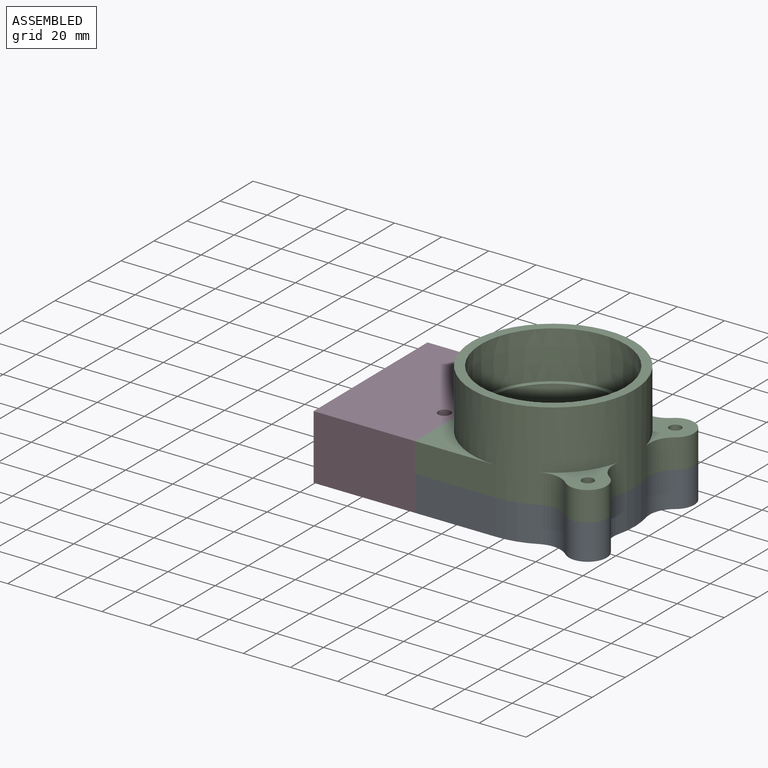
[diagram: assembled view]
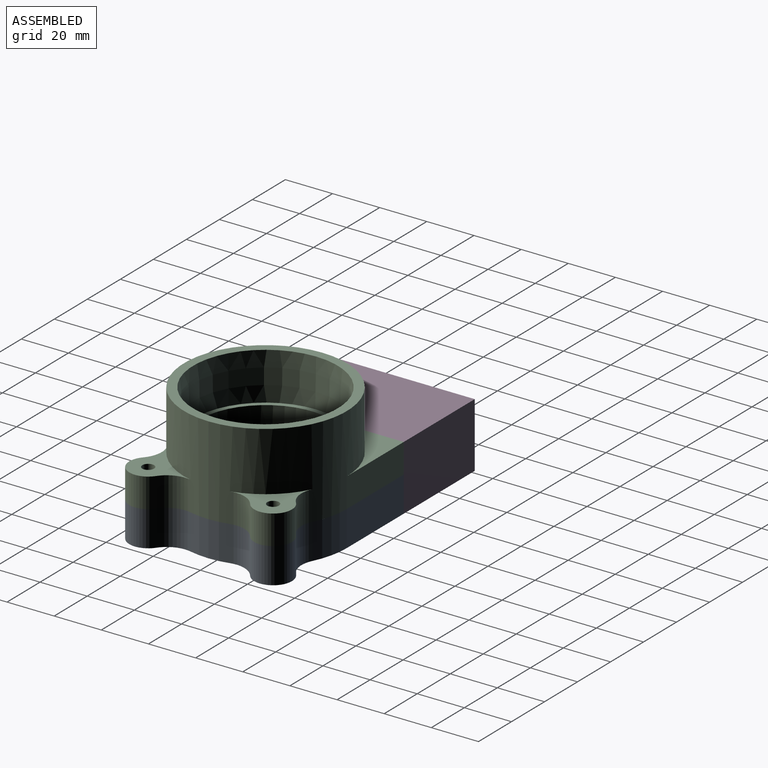
[diagram: assembled view, second angle]
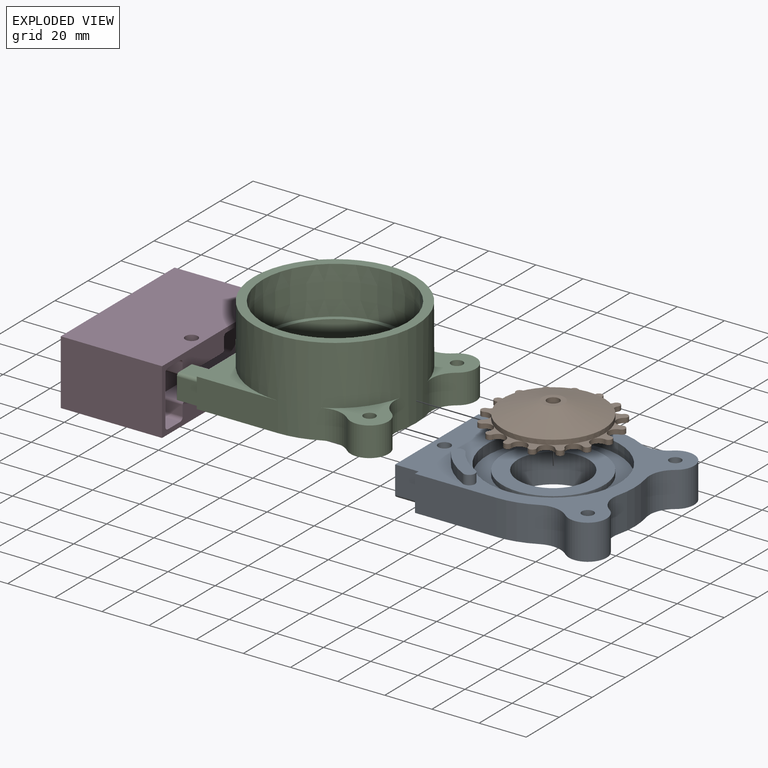
[diagram: exploded view]
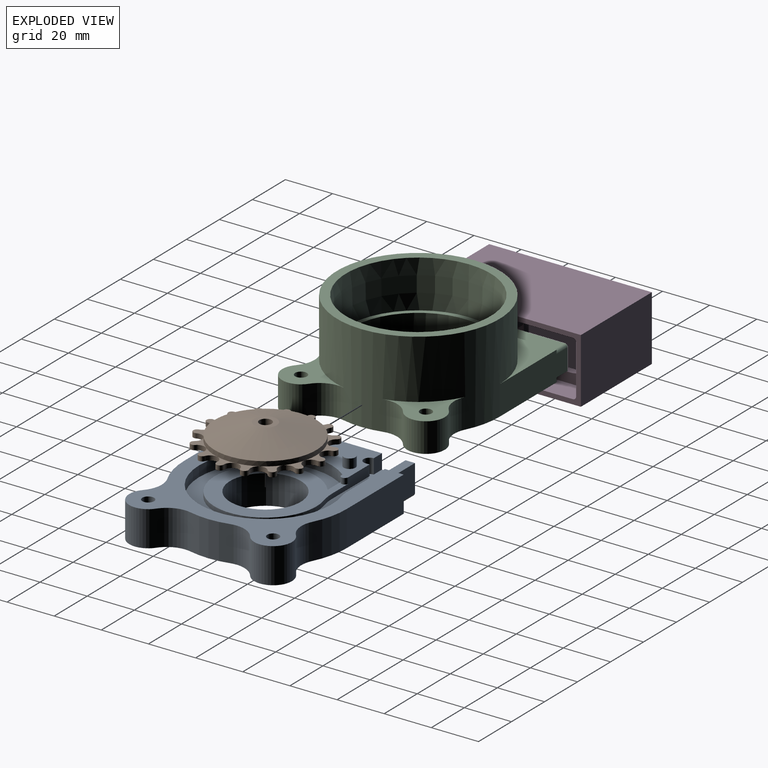
[diagram: exploded view, second angle]
ASSEMBLY  parts=4 mates=8
PART A: 68 faces, bbox 85.7x69x19 mm
  f0: plane 64.5x12.75mm, normal (-1,0,0), area 583.9mm2, adj f11,f25,f26,f27,f28,f29,f30,f31
  f1: plane 22.83x4.5mm, normal (0,-1,0), area 102.8mm2, adj f2,f11,f12,f56
  f2: cylinder r=15.1mm len=4.5mm, axis (0,0,1), area 18.6mm2, adj f1,f3,f11,f12
  f3: cylinder r=28.1mm len=56.21mm, axis (0,0,1), area 712.7mm2, adj f2,f4,f11,f12
  f4: plane 9.05x4.5mm, normal (0,-1,0), area 19.9mm2, adj f3,f5,f9,f10,f11,f12
  f5: cylinder r=21.6mm len=43.21mm, axis (0,0,1), area 254.6mm2, adj f4,f6,f9,f12
  f6: cylinder r=21.6mm len=5.83mm, axis (0,0,1), area 11.8mm2, adj f5,f7,f9,f12
  f7: plane 22.83x4.5mm, normal (0,1,0), area 77.8mm2, adj f6,f9,f10,f11,f12,f56
  f8: plane 69x15mm, normal (-1,0,0), area 388.6mm2, adj f11,f13,f14,f24,f25,f26,f27,f28
  f9: plane 43.26x43.21mm, normal (0,0,1), area 788.4mm2, adj f4,f5,f6,f7,f10,f38
  f10: cylinder r=1.5mm len=3mm, axis (0,0,-1), area 11.8mm2, adj f4,f7,f9,f11
  f11: plane 85.73x69mm, normal (0,0,1), area 2501.1mm2, adj f0,f1,f2,f3,f4,f7,f8,f10
  f12: plane 62.61x56.21mm, normal (0,0,1), area 1108.6mm2, adj f1,f2,f3,f4,f5,f6,f7,f56
  f13: plane 75.73x69mm, normal (0,0,-1), area 3938.9mm2, adj f8,f14,f15,f16,f17,f18,f19,f20
  f14: plane 34.5x15mm, normal (0,1,0), area 517.5mm2, adj f8,f11,f13,f15
  f15: cylinder r=34.5mm len=15.56mm, axis (0,0,-1), area 242.2mm2, adj f11,f13,f14,f16
  f16: cylinder r=10.97mm len=15mm, axis (0,0,-1), area 197.9mm2, adj f11,f13,f15,f17
  f17: cylinder r=8mm len=15mm, axis (0,0,-1), area 391.7mm2, adj f11,f13,f16,f18
  f18: cylinder r=10.97mm len=15mm, axis (0,0,-1), area 197.9mm2, adj f11,f13,f17,f19
  f19: cylinder r=34.5mm len=16.65mm, axis (0,0,-1), area 252.2mm2, adj f11,f13,f18,f20
  f20: cylinder r=10.97mm len=15mm, axis (0,0,-1), area 197.9mm2, adj f11,f13,f19,f21
  f21: cylinder r=8mm len=15mm, axis (0,0,-1), area 391.7mm2, adj f11,f13,f20,f22
  f22: cylinder r=10.97mm len=15mm, axis (0,0,-1), area 197.9mm2, adj f11,f13,f21,f23
  f23: cylinder r=34.5mm len=15.56mm, axis (0,0,-1), area 242.2mm2, adj f11,f13,f22,f24
  f24: plane 34.5x15mm, normal (0,-1,0), area 517.5mm2, adj f8,f11,f13,f23
  f25: plane 11.5x10mm, normal (0,1,0), area 115mm2, adj f0,f8,f11,f26
  f26: cylinder r=1.25mm len=10mm, axis (1,0,0), area 19.6mm2, adj f0,f8,f25,f27
  f27: plane 26.5x10mm, normal (0,0,-1), area 265mm2, adj f0,f8,f26,f28
  f28: cylinder r=1.25mm len=10mm, axis (1,0,0), area 19.6mm2, adj f0,f8,f27,f29
  f29: plane 10x4.38mm, normal (0,-1,0), area 43.7mm2, adj f0,f8,f28,f30
  f30: cylinder r=1.25mm len=10mm, axis (1,0,0), area 19.6mm2, adj f0,f8,f29,f31
  f31: plane 23x10mm, normal (0,0,-1), area 208.4mm2, adj f0,f8,f30,f32,f55
  f32: cylinder r=1.25mm len=10mm, axis (1,0,0), area 19.6mm2, adj f0,f8,f31,f33
  f33: plane 10x4.38mm, normal (0,1,0), area 43.7mm2, adj f0,f8,f32,f34
  f34: cylinder r=1.25mm len=10mm, axis (1,0,0), area 19.6mm2, adj f0,f8,f33,f35
  f35: plane 10x7.5mm, normal (0,0,-1), area 75mm2, adj f0,f8,f34,f36
  f36: cylinder r=1.25mm len=10mm, axis (1,0,0), area 19.6mm2, adj f0,f8,f35,f37
  f37: plane 11.5x10mm, normal (0,-1,0), area 115mm2, adj f0,f8,f11,f36
  f38: cylinder r=15mm len=30mm, axis (0,0,1), area 1178.1mm2, adj f9,f13
  f39: plane 6x4.3mm, normal (0.37,0.93,0), area 27.7mm2, adj f13,f40,f44,f45
  f40: plane 6x4.57mm, normal (0.99,0.15,0), area 27.7mm2, adj f13,f39,f41,f45
  f41: plane 6x3.61mm, normal (0.62,-0.78,0), area 27.7mm2, adj f13,f40,f42,f45
  f42: plane 6x4.3mm, normal (-0.37,-0.93,0), area 27.7mm2, adj f13,f41,f43,f45
  f43: plane 6x4.57mm, normal (-0.99,-0.15,0), area 27.7mm2, adj f13,f42,f44,f45
  f44: plane 6x3.61mm, normal (-0.62,0.78,0), area 27.7mm2, adj f13,f39,f43,f45
  f45: plane 9.13x8.6mm, normal (0,0,-1), area 35.8mm2, adj f39,f40,f41,f42,f43,f44,f54
  f46: plane 6x3.61mm, normal (0.62,0.78,0), area 27.7mm2, adj f13,f47,f51,f52
  f47: plane 6x4.57mm, normal (0.99,-0.15,0), area 27.7mm2, adj f13,f46,f48,f52
  f48: plane 6x4.3mm, normal (0.37,-0.93,0), area 27.7mm2, adj f13,f47,f49,f52
  f49: plane 6x3.61mm, normal (-0.62,-0.78,0), area 27.7mm2, adj f13,f48,f50,f52
  f50: plane 6x4.57mm, normal (-0.99,0.15,0), area 27.7mm2, adj f13,f49,f51,f52
  f51: plane 6x4.3mm, normal (-0.37,0.93,0), area 27.7mm2, adj f13,f46,f50,f52
  f52: plane 9.13x8.6mm, normal (0,0,-1), area 35.8mm2, adj f46,f47,f48,f49,f50,f51,f53
  f53: cylinder r=2.5mm len=9mm, axis (0,0,1), area 141.4mm2, adj f11,f52
  f54: cylinder r=2.5mm len=9mm, axis (0,0,1), area 141.4mm2, adj f11,f45
  f55: cylinder r=2.62mm len=5.88mm, axis (0,0,1), area 96.9mm2, adj f11,f31
  f56: plane 10x6.25mm, normal (-1,0,0), area 33.3mm2, adj f1,f7,f11,f12,f57,f59,f60
  f57: plane 10x6.25mm, normal (0,-1,0), area 62.5mm2, adj f0,f11,f56,f60
  f58: plane 6.25x5mm, normal (0,1,0), area 31.2mm2, adj f0,f11,f59,f60
  f59: cylinder r=2.5mm len=6.25mm, axis (0,0,1), area 49.1mm2, adj f11,f56,f58,f60
  f60: plane 12.5x10mm, normal (0,0,1), area 109.8mm2, adj f0,f56,f57,f58,f59
  f61: cylinder r=35.6mm len=13.7mm, axis (0,0,-1), area 74.6mm2, adj f11,f62,f64,f65
  f62: cylinder r=2.5mm len=4.73mm, axis (0,0,-1), area 31.4mm2, adj f11,f61,f63,f65
  f63: cylinder r=30.6mm len=11.78mm, axis (0,0,-1), area 64.1mm2, adj f11,f62,f64,f65
  f64: cylinder r=2.5mm len=4.6mm, axis (0,0,-1), area 31.4mm2, adj f11,f61,f63,f65
  f65: plane 17.74x16.46mm, normal (0,0,1), area 106.3mm2, adj f61,f62,f63,f64
  f66: cylinder r=2.5mm len=5mm, axis (0,0,-1), area 62.8mm2, adj f11,f67
  f67: plane 5x5mm, normal (0,0,1), area 19.6mm2, adj f66
PART B: 68 faces, bbox 52x52x9 mm
  f0: plane 52.01x52.01mm, normal (0,0,-1), area 1554mm2, adj f16,f17,f18,f19,f20,f21,f22,f23
  f1: plane 8.27x6.04mm, normal (0,0,1), area 17.7mm2, adj f42,f43,f44,f49
  f2: plane 7.17x7.01mm, normal (0,0,1), area 17.7mm2, adj f44,f45,f46,f49
  f3: plane 7.16x7.02mm, normal (0,0,1), area 17.7mm2, adj f16,f46,f47,f49
  f4: plane 8.27x6.04mm, normal (0,0,1), area 17.7mm2, adj f16,f17,f18,f49
  f5: plane 8.27x6.04mm, normal (0,0,1), area 17.7mm2, adj f18,f19,f20,f49
  f6: plane 7.17x7.01mm, normal (0,0,1), area 17.7mm2, adj f20,f21,f22,f49
  f7: plane 7.16x7.02mm, normal (0,0,1), area 17.7mm2, adj f22,f23,f24,f49
  f8: plane 8.27x6.04mm, normal (0,0,1), area 17.7mm2, adj f24,f25,f26,f49
  f9: plane 8.27x6.04mm, normal (0,0,1), area 17.7mm2, adj f26,f27,f28,f49
  f10: plane 7.17x7.01mm, normal (0,0,1), area 17.7mm2, adj f28,f29,f30,f49
  f11: plane 7.16x7.02mm, normal (0,0,1), area 17.7mm2, adj f30,f31,f32,f49
  f12: plane 8.27x6.04mm, normal (0,0,1), area 17.7mm2, adj f32,f33,f34,f49
  f13: plane 8.27x6.04mm, normal (0,0,1), area 17.7mm2, adj f34,f35,f36,f49
  f14: plane 7.17x7.01mm, normal (0,0,1), area 17.7mm2, adj f36,f37,f38,f49
  f15: plane 7.16x7.02mm, normal (0,0,1), area 17.7mm2, adj f38,f39,f40,f49
  f16: cylinder r=3.25mm len=6.17mm, axis (0,0,-1), area 19.4mm2, adj f0,f3,f4,f17,f47
  f17: cylinder r=1.62mm len=3.23mm, axis (0,0,-1), area 10.6mm2, adj f0,f4,f16,f18
  f18: cylinder r=3.25mm len=6.48mm, axis (0,0,-1), area 19.4mm2, adj f0,f4,f5,f17,f19
  f19: cylinder r=1.62mm len=3.24mm, axis (0,0,-1), area 10.6mm2, adj f0,f5,f18,f20
  f20: cylinder r=3.25mm len=6.12mm, axis (0,0,-1), area 19.4mm2, adj f0,f5,f6,f19,f21
  f21: cylinder r=1.62mm len=3.06mm, axis (0,0,-1), area 10.6mm2, adj f0,f6,f20,f22
  f22: cylinder r=3.25mm len=5.39mm, axis (0,0,-1), area 19.4mm2, adj f0,f6,f7,f21,f23
  f23: cylinder r=1.62mm len=3.01mm, axis (0,0,-1), area 10.6mm2, adj f0,f7,f22,f24
  f24: cylinder r=3.25mm len=6.17mm, axis (0,0,-1), area 19.4mm2, adj f0,f7,f8,f23,f25
  f25: cylinder r=1.62mm len=3.23mm, axis (0,0,-1), area 10.6mm2, adj f0,f8,f24,f26
  f26: cylinder r=3.25mm len=6.48mm, axis (0,0,-1), area 19.4mm2, adj f0,f8,f9,f25,f27
  f27: cylinder r=1.62mm len=3.24mm, axis (0,0,-1), area 10.6mm2, adj f0,f9,f26,f28
  f28: cylinder r=3.25mm len=6.12mm, axis (0,0,-1), area 19.4mm2, adj f0,f9,f10,f27,f29
  f29: cylinder r=1.62mm len=3.06mm, axis (0,0,-1), area 10.6mm2, adj f0,f10,f28,f30
  f30: cylinder r=3.25mm len=5.39mm, axis (0,0,-1), area 19.4mm2, adj f0,f10,f11,f29,f31
  f31: cylinder r=1.62mm len=3.01mm, axis (0,0,-1), area 10.6mm2, adj f0,f11,f30,f32
  f32: cylinder r=3.25mm len=6.17mm, axis (0,0,-1), area 19.4mm2, adj f0,f11,f12,f31,f33
  f33: cylinder r=1.62mm len=3.23mm, axis (0,0,-1), area 10.6mm2, adj f0,f12,f32,f34
  f34: cylinder r=3.25mm len=6.48mm, axis (0,0,-1), area 19.4mm2, adj f0,f12,f13,f33,f35
  f35: cylinder r=1.62mm len=3.24mm, axis (0,0,-1), area 10.6mm2, adj f0,f13,f34,f36
  f36: cylinder r=3.25mm len=6.12mm, axis (0,0,-1), area 19.4mm2, adj f0,f13,f14,f35,f37
  f37: cylinder r=1.62mm len=3.06mm, axis (0,0,-1), area 10.6mm2, adj f0,f14,f36,f38
  f38: cylinder r=3.25mm len=5.39mm, axis (0,0,-1), area 19.4mm2, adj f0,f14,f15,f37,f39
  f39: cylinder r=1.62mm len=3.01mm, axis (0,0,-1), area 10.6mm2, adj f0,f15,f38,f40
  f40: cylinder r=3.25mm len=6.17mm, axis (0,0,-1), area 19.4mm2, adj f0,f15,f39,f41,f48
  f41: cylinder r=1.62mm len=3.23mm, axis (0,0,-1), area 10.6mm2, adj f0,f40,f42,f48
  f42: cylinder r=3.25mm len=6.48mm, axis (0,0,-1), area 19.4mm2, adj f0,f1,f41,f43,f48
  f43: cylinder r=1.62mm len=3.24mm, axis (0,0,-1), area 10.6mm2, adj f0,f1,f42,f44
  f44: cylinder r=3.25mm len=6.12mm, axis (0,0,-1), area 19.4mm2, adj f0,f1,f2,f43,f45
  f45: cylinder r=1.62mm len=3.06mm, axis (0,0,-1), area 10.6mm2, adj f0,f2,f44,f46
  f46: cylinder r=3.25mm len=5.39mm, axis (0,0,-1), area 19.4mm2, adj f0,f2,f3,f45,f47
  f47: cylinder r=1.62mm len=3.01mm, axis (0,0,-1), area 10.6mm2, adj f0,f3,f16,f46
  f48: plane 8.27x6.04mm, normal (0,0,1), area 17.7mm2, adj f40,f41,f42,f49
  f49: cylinder r=21.6mm len=43.21mm, axis (0,0,-1), area 271.5mm2, adj f1,f2,f3,f4,f5,f6,f7,f8
  f50: plane 9.5x9.5mm, normal (0,0,1), area 49.2mm2, adj f51,f52
  f51: cone r=4.75mm half-angle=73.5deg, axis (0,0,-1), area 1455.6mm2, adj f49,f50
  f52: cylinder r=2.62mm len=9mm, axis (0,0,1), area 148.4mm2, adj f0,f50
  f53: cylinder r=6.31mm len=4.84mm, axis (0,0,-1), area 22mm2, adj f0,f54,f56,f57
  f54: cylinder r=2.5mm len=4.42mm, axis (0,0,-1), area 31.4mm2, adj f0,f53,f55,f57
  f55: cylinder r=11.31mm len=8.67mm, axis (0,0,-1), area 39.5mm2, adj f0,f54,f56,f57
  f56: cylinder r=2.5mm len=5mm, axis (0,0,-1), area 31.4mm2, adj f0,f53,f55,f57
  f57: plane 11.75x8.15mm, normal (0,0,-1), area 58.1mm2, adj f53,f54,f55,f56
  f58: cylinder r=11.31mm len=9.53mm, axis (0,0,-1), area 39.5mm2, adj f0,f59,f61,f62
  f59: cylinder r=2.5mm len=4.67mm, axis (0,0,-1), area 31.4mm2, adj f0,f58,f60,f62
  f60: cylinder r=6.31mm len=5.32mm, axis (0,0,-1), area 22mm2, adj f0,f59,f61,f62
  f61: cylinder r=2.5mm len=4.85mm, axis (0,0,-1), area 31.4mm2, adj f0,f58,f60,f62
  f62: plane 12.42x6.18mm, normal (0,0,-1), area 58.1mm2, adj f58,f59,f60,f61
  f63: cylinder r=11.31mm len=7.83mm, axis (0,0,-1), area 39.5mm2, adj f0,f64,f66,f67
  f64: cylinder r=2.5mm len=4.67mm, axis (0,0,-1), area 31.4mm2, adj f0,f63,f65,f67
  f65: cylinder r=6.31mm len=4.37mm, axis (0,0,-1), area 22mm2, adj f0,f64,f66,f67
  f66: cylinder r=2.5mm len=4.96mm, axis (0,0,-1), area 31.4mm2, adj f0,f63,f65,f67
  f67: plane 11.1x9.27mm, normal (0,0,-1), area 58.1mm2, adj f63,f64,f65,f66
PART C: 58 faces, bbox 85.7x69x37.5 mm
  f0: plane 64.5x10.25mm, normal (-1,0,0), area 447.6mm2, adj f11,f22,f25,f29,f30,f31,f32,f33
  f1: cylinder r=28.1mm len=56.21mm, axis (0,0,-1), area 2969.6mm2, adj f6,f24,f25,f26,f27,f42,f43
  f2: plane 26.18x25.66mm, normal (0,0,1), area 233.6mm2, adj f13,f14,f15,f19,f41
  f3: plane 34.5x34.5mm, normal (0,0,1), area 255.4mm2, adj f12,f19,f21
  f4: plane 34.5x34.5mm, normal (0,0,1), area 255.4mm2, adj f19,f20,f21
  f5: plane 26.18x25.66mm, normal (0,0,1), area 233.6mm2, adj f16,f17,f18,f19,f40
  f6: plane 8.11x3.41mm, normal (0,-1,0), area 23.4mm2, adj f1,f7,f25,f42
  f7: cylinder r=0.4mm len=2.09mm, axis (0,0,-1), area 0.6mm2, adj f6,f8,f25,f42
  f8: cylinder r=22.1mm len=3.16mm, axis (0,0,-1), area 8.8mm2, adj f7,f9,f25,f26,f42
  f9: cylinder r=0.4mm len=2mm, axis (0,0,-1), area 2.1mm2, adj f8,f10,f25,f27
  f10: plane 23.44x2mm, normal (0,1,0), area 46.9mm2, adj f9,f25,f27,f49
  f11: plane 10x9mm, normal (0,-1,0), area 90mm2, adj f0,f21,f25,f29
  f12: plane 34.5x12.5mm, normal (0,-1,0), area 431.2mm2, adj f3,f19,f21,f25
  f13: cylinder r=10.97mm len=12.5mm, axis (0,0,-1), area 164.9mm2, adj f2,f14,f19,f25
  f14: cylinder r=8mm len=14.55mm, axis (0,0,-1), area 326.4mm2, adj f2,f13,f15,f25
  f15: cylinder r=10.97mm len=12.5mm, axis (0,0,-1), area 164.9mm2, adj f2,f14,f19,f25
  f16: cylinder r=10.97mm len=12.5mm, axis (0,0,-1), area 164.9mm2, adj f5,f17,f19,f25
  f17: cylinder r=8mm len=14.55mm, axis (0,0,-1), area 326.4mm2, adj f5,f16,f18,f25
  f18: cylinder r=10.97mm len=12.5mm, axis (0,0,-1), area 164.9mm2, adj f5,f17,f19,f25
  f19: cylinder r=34.5mm len=69mm, axis (0,0,-1), area 6033.1mm2, adj f2,f3,f4,f5,f12,f13,f15,f16
  f20: plane 34.5x12.5mm, normal (0,1,0), area 431.2mm2, adj f4,f19,f21,f25
  f21: plane 69x12.5mm, normal (-1,0,0), area 377.4mm2, adj f3,f4,f11,f12,f20,f22,f25,f29
  f22: plane 10x9mm, normal (0,1,0), area 90mm2, adj f0,f21,f25,f39
  f23: plane 22.83x2mm, normal (0,-1,0), area 45.7mm2, adj f24,f25,f27,f49
  f24: cylinder r=15.1mm len=4.08mm, axis (0,0,-1), area 8.3mm2, adj f1,f23,f25,f27
  f25: plane 85.73x69mm, normal (0,0,-1), area 2509.2mm2, adj f0,f1,f6,f7,f8,f9,f10,f11
  f26: cylinder r=28.1mm len=9.53mm, axis (0,0,-1), area 6.6mm2, adj f1,f8,f27,f42
  f27: plane 33.17x8.82mm, normal (0,0,-1), area 195.4mm2, adj f1,f9,f10,f23,f24,f26,f49
  f28: plane 69x69mm, normal (0,0,1), area 785.6mm2, adj f19,f44
  f29: cylinder r=1.25mm len=10mm, axis (1,0,0), area 19.6mm2, adj f0,f11,f21,f30
  f30: plane 10x7.5mm, normal (0,0,1), area 75mm2, adj f0,f21,f29,f31
  f31: cylinder r=1.25mm len=10mm, axis (1,0,0), area 19.6mm2, adj f0,f21,f30,f32
  f32: plane 10x4.38mm, normal (0,1,0), area 43.7mm2, adj f0,f21,f31,f33
  f33: cylinder r=1.25mm len=10mm, axis (1,0,0), area 19.6mm2, adj f0,f21,f32,f34
  f34: plane 23x10mm, normal (0,0,1), area 208.4mm2, adj f0,f21,f33,f35,f45
  f35: cylinder r=1.25mm len=10mm, axis (1,0,0), area 19.6mm2, adj f0,f21,f34,f36
  f36: plane 10x4.38mm, normal (0,-1,0), area 43.7mm2, adj f0,f21,f35,f37
  f37: cylinder r=1.25mm len=10mm, axis (1,0,0), area 19.6mm2, adj f0,f21,f36,f38
  f38: plane 26.5x10mm, normal (0,0,1), area 265mm2, adj f0,f21,f37,f39
  f39: cylinder r=1.25mm len=10mm, axis (1,0,0), area 19.6mm2, adj f0,f21,f22,f38
  f40: cylinder r=2.5mm len=12.5mm, axis (0,0,1), area 196.3mm2, adj f5,f25
  f41: cylinder r=2.5mm len=12.5mm, axis (0,0,1), area 196.3mm2, adj f2,f25
  f42: cone r=14.1mm half-angle=54.5deg, axis (0,0,-1), area 120.4mm2, adj f1,f6,f7,f8,f26
  f43: plane 60.33x60.33mm, normal (0,0,1), area 376.7mm2, adj f1,f44
  f44: cone r=30.16mm half-angle=1.4deg, axis (0,0,1), area 3822.9mm2, adj f28,f43
  f45: cylinder r=2.62mm len=5.25mm, axis (0,0,1), area 55.7mm2, adj f25,f34
  f46: plane 10x3.75mm, normal (0,-1,0), area 37.5mm2, adj f0,f25,f49,f50
  f47: plane 5x3.75mm, normal (0,1,0), area 18.7mm2, adj f0,f25,f48,f50
  f48: cylinder r=2.5mm len=5mm, axis (0,0,1), area 29.5mm2, adj f25,f47,f49,f50
  f49: plane 10x3.75mm, normal (-1,0,0), area 24.5mm2, adj f10,f23,f25,f27,f46,f48,f50
  f50: plane 12.5x10mm, normal (0,0,-1), area 109.8mm2, adj f0,f46,f47,f48,f49
  f51: plane 18.24x16.96mm, normal (0,0,-1), area 119.1mm2, adj f52,f53,f54,f55
  f52: cylinder r=2.75mm len=5.2mm, axis (0,0,1), area 36.7mm2, adj f25,f51,f53,f55
  f53: cylinder r=30.35mm len=11.68mm, axis (0,0,1), area 67.5mm2, adj f25,f51,f52,f54
  f54: cylinder r=2.75mm len=5.06mm, axis (0,0,1), area 36.7mm2, adj f25,f51,f53,f55
  f55: cylinder r=35.85mm len=13.8mm, axis (0,0,1), area 79.8mm2, adj f25,f51,f52,f54
  f56: cylinder r=2.75mm len=5.5mm, axis (0,0,1), area 73.4mm2, adj f25,f57
  f57: plane 5.5x5.5mm, normal (0,0,-1), area 23.8mm2, adj f56
PART D: 57 faces, bbox 43x69x27.5 mm
  f0: cylinder r=2.62mm len=5.25mm, axis (0,0,1), area 47.4mm2, adj f31,f37
  f1: plane 43x27.5mm, normal (0,-1,0), area 1182.5mm2, adj f2,f5,f6,f56
  f2: plane 69x43mm, normal (0,0,1), area 2945.4mm2, adj f1,f3,f5,f36,f56
  f3: plane 43x27.5mm, normal (0,1,0), area 1182.5mm2, adj f2,f5,f6,f56
  f4: plane 65x23.5mm, normal (-1,0,0), area 1099.8mm2, adj f32,f33,f34,f35,f44,f45,f46,f47
  f5: plane 69x27.5mm, normal (1,0,0), area 716.8mm2, adj f1,f2,f3,f6,f8,f9,f10,f11
  f6: plane 69x43mm, normal (0,0,-1), area 2911.6mm2, adj f1,f3,f5,f38,f39,f40,f41,f42
  f7: plane 65x23.5mm, normal (1,0,0), area 792.4mm2, adj f8,f9,f10,f11,f12,f13,f14,f15
  f8: cylinder r=1mm len=10mm, axis (1,0,0), area 15.7mm2, adj f5,f7,f30,f31
  f9: cylinder r=1mm len=10mm, axis (1,0,0), area 15.7mm2, adj f5,f7,f10,f31
  f10: plane 10x4.38mm, normal (0,-1,0), area 43.7mm2, adj f5,f7,f9,f11
  f11: cylinder r=1.5mm len=10mm, axis (1,0,0), area 23.6mm2, adj f5,f7,f10,f12
  f12: plane 10x7.5mm, normal (0,0,1), area 75mm2, adj f5,f7,f11,f13
  f13: cylinder r=1.5mm len=10mm, axis (1,0,0), area 23.6mm2, adj f5,f7,f12,f14
  f14: plane 20.5x10mm, normal (0,1,0), area 205mm2, adj f5,f7,f13,f15
  f15: cylinder r=1.5mm len=10mm, axis (1,0,0), area 23.6mm2, adj f5,f7,f14,f16
  f16: plane 10x7.5mm, normal (0,0,-1), area 75mm2, adj f5,f7,f15,f17
  f17: cylinder r=1.5mm len=10mm, axis (1,0,0), area 23.6mm2, adj f5,f7,f16,f18
  f18: plane 10x4.38mm, normal (0,-1,0), area 43.7mm2, adj f5,f7,f17,f19
  f19: cylinder r=1mm len=10mm, axis (1,0,0), area 15.7mm2, adj f5,f7,f18,f20
  f20: plane 23x10mm, normal (0,0,-1), area 208.4mm2, adj f5,f7,f19,f21,f36
  f21: cylinder r=1mm len=10mm, axis (1,0,0), area 15.7mm2, adj f5,f7,f20,f23
  f22: cylinder r=1.5mm len=10mm, axis (1,0,0), area 23.6mm2, adj f5,f7,f23,f24
  f23: plane 10x4.38mm, normal (0,1,0), area 43.7mm2, adj f5,f7,f21,f22
  f24: plane 26.5x10mm, normal (0,0,-1), area 265mm2, adj f5,f7,f22,f25
  f25: cylinder r=1.5mm len=10mm, axis (1,0,0), area 23.6mm2, adj f5,f7,f24,f26
  f26: plane 20.5x10mm, normal (0,-1,0), area 205mm2, adj f5,f7,f25,f27
  f27: cylinder r=1.5mm len=10mm, axis (1,0,0), area 23.6mm2, adj f5,f7,f26,f28
  f28: plane 26.5x10mm, normal (0,0,1), area 265mm2, adj f5,f7,f27,f29
  f29: cylinder r=1.5mm len=10mm, axis (1,0,0), area 23.6mm2, adj f5,f7,f28,f30
  f30: plane 10x4.38mm, normal (0,1,0), area 43.7mm2, adj f5,f7,f8,f29
  f31: plane 23x10mm, normal (0,0,1), area 208.4mm2, adj f0,f5,f7,f8,f9
  f32: cylinder r=7.5mm len=15mm, axis (-1,0,0), area 70.7mm2, adj f4,f7,f33,f34
  f33: plane 20x3mm, normal (0,0,-1), area 60mm2, adj f4,f7,f32,f35
  f34: plane 20x3mm, normal (0,0,1), area 60mm2, adj f4,f7,f32,f35
  f35: plane 15x3mm, normal (0,1,0), area 45mm2, adj f4,f7,f33,f34
  f36: cylinder r=2.62mm len=8.88mm, axis (0,0,1), area 146.4mm2, adj f2,f20
  f37: plane 9.24x8mm, normal (0,0,-1), area 33.8mm2, adj f0,f38,f39,f40,f41,f42,f43
  f38: plane 6x4mm, normal (-0.5,-0.87,0), area 27.7mm2, adj f6,f37,f39,f43
  f39: plane 6x4.62mm, normal (-1,0,0), area 27.7mm2, adj f6,f37,f38,f40
  f40: plane 6x4mm, normal (-0.5,0.87,0), area 27.7mm2, adj f6,f37,f39,f41
  f41: plane 6x4mm, normal (0.5,0.87,0), area 27.7mm2, adj f6,f37,f40,f42
  f42: plane 6x4.62mm, normal (1,0,0), area 27.7mm2, adj f6,f37,f41,f43
  f43: plane 6x4mm, normal (0.5,-0.87,0), area 27.7mm2, adj f6,f37,f38,f42
  f44: plane 30x2.25mm, normal (0,0,-1), area 67.5mm2, adj f4,f45,f55,f56
  f45: plane 30x13mm, normal (0,1,0), area 390mm2, adj f4,f44,f46,f56
  f46: plane 30x2.25mm, normal (0,0,1), area 67.5mm2, adj f4,f45,f47,f56
  f47: cylinder r=1.5mm len=30mm, axis (1,0,0), area 70.7mm2, adj f4,f46,f48,f56
  f48: plane 30x3.75mm, normal (0,1,0), area 112.5mm2, adj f4,f47,f49,f56
  f49: plane 59.75x30mm, normal (0,0,1), area 1792.5mm2, adj f4,f48,f50,f56
  f50: cylinder r=1.5mm len=30mm, axis (1,0,0), area 70.7mm2, adj f4,f49,f51,f56
  f51: plane 30x20.5mm, normal (0,-1,0), area 615mm2, adj f4,f50,f52,f56
  f52: cylinder r=1.5mm len=30mm, axis (1,0,0), area 70.7mm2, adj f4,f51,f53,f56
  f53: plane 59.75x30mm, normal (0,0,-1), area 1792.5mm2, adj f4,f52,f54,f56
  f54: plane 30x3.75mm, normal (0,1,0), area 112.5mm2, adj f4,f53,f55,f56
  f55: cylinder r=1.5mm len=30mm, axis (1,0,0), area 70.7mm2, adj f4,f44,f54,f56
  f56: plane 69x27.5mm, normal (-1,0,0), area 409.4mm2, adj f1,f2,f3,f6,f44,f45,f46,f47
PLACE A t=(-0.21,-0.51,-5.41)mm fixed
PLACE B rot(axis=(0,0,1),51.7deg) t=(-0.21,-0.51,-5.41)mm
PLACE C rot(axis=(0,0,1),0deg) t=(-0.21,-0.51,-5.41)mm
PLACE D rot(axis=(0,0,1),0deg) t=(-0.21,-0.51,-5.41)mm
MATE planar C.f0 <-> A.f0  axis (-1,0,0) through (-44.71,1.26,1.81)mm
MATE planar D.f7 <-> A.f0  axis (1,0,0) through (-44.71,-4.34,-4.16)mm
MATE planar D.f2 <-> C.f4  axis (0,0,1) through (-56.34,-0.44,9.59)mm
MATE cylindrical C.f19 <-> A.f15  axis (0,0,-1) through (-0.21,-0.51,-2.91)mm
MATE planar D.f1 <-> A.f24  axis (0,-1,0) through (-56.21,-35.01,-4.16)mm
MATE planar B.f63 <-> A.f5  axis (0,0,-1) through (-0.21,-0.51,-5.41)mm
MATE planar C.f25 <-> A.f11  axis (0,0,-1) through (-5.44,-1.39,-2.91)mm
MATE cylindrical B.f49 <-> A.f15  axis (0,0,1) through (-0.21,-0.51,-3.41)mm
